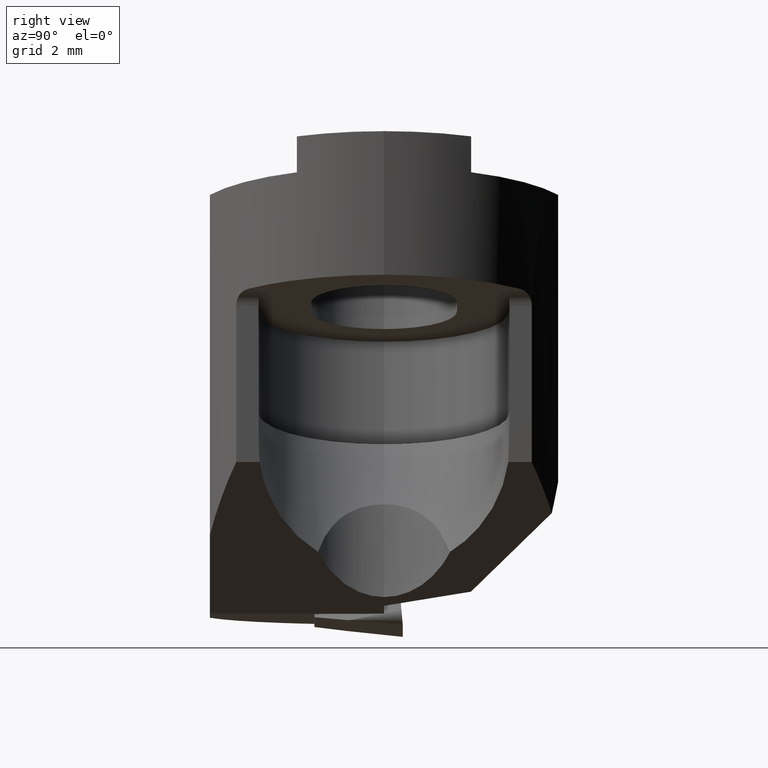
[diagram: clean part render]
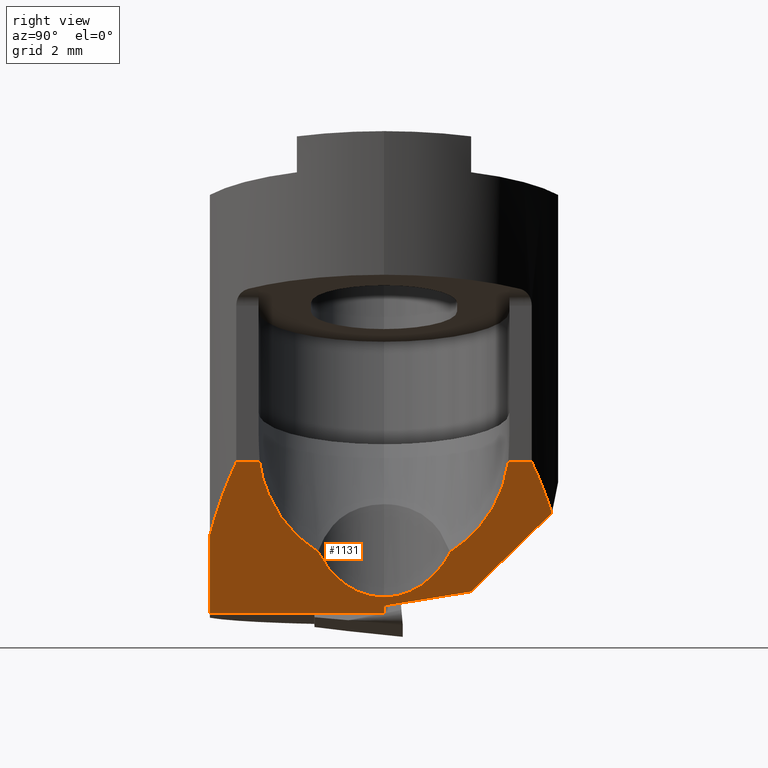
[diagram: same view with one face highlighted and labeled with its STEP entity id]
A machine part, right view. The second image highlights one B-rep face of the part: STEP entity #1131.
In plain terms, the highlighted planar face has unit normal (-0.866, 0, 0.5).
Its self-contained STEP definition (entity closure, byte-faithful):
#905=VERTEX_POINT('NONE',#2488);
#915=EDGE_CURVE('NONE',#997,#1475,#2498,.T.);
#961=EDGE_CURVE('NONE',#1815,#1187,#2549,.F.);
#997=VERTEX_POINT('NONE',#2585);
#1061=EDGE_CURVE('NONE',#2227,#1665,#2653,.T.);
#1087=EDGE_CURVE('NONE',#905,#1157,#2681,.T.);
#1101=EDGE_CURVE('NONE',#1187,#997,#2695,.T.);
#1103=VERTEX_POINT('',#2697);
#1131=ADVANCED_FACE('NONE',(#2727),#2728,.F.);
#1157=VERTEX_POINT('NONE',#2756);
#1165=EDGE_CURVE('NONE',#2227,#1103,#2764,.T.);
#1187=VERTEX_POINT('NONE',#2788);
#1191=VERTEX_POINT('NONE',#2793);
#1243=VERTEX_POINT('NONE',#2851);
#1417=VERTEX_POINT('NONE',#3048);
#1475=VERTEX_POINT('NONE',#3111);
#1485=EDGE_CURVE('NONE',#1191,#1475,#3121,.T.);
#1523=EDGE_CURVE('NONE',#1191,#1739,#3165,.T.);
#1665=VERTEX_POINT('NONE',#3317);
#1727=EDGE_CURVE('NONE',#905,#1665,#3386,.T.);
#1739=VERTEX_POINT('NONE',#3399);
#1815=VERTEX_POINT('NONE',#3483);
#1823=EDGE_CURVE('NONE',#1417,#1815,#3492,.T.);
#1859=EDGE_CURVE('NONE',#1417,#1243,#3535,.T.);
#2019=EDGE_CURVE('NONE',#1103,#1739,#3716,.T.);
#2185=EDGE_CURVE('NONE',#1243,#1157,#3903,.T.);
#2227=VERTEX_POINT('NONE',#3945);
#2488=CARTESIAN_POINT('',(3.5,-4.24264068711929,-9.5));
#2498=ELLIPSE('',#4276,11.0,5.5);
#2549=LINE('',#4346,#4347);
#2585=CARTESIAN_POINT('',(2.65314188419159,4.81776277356496,-10.9668012833822));
#2653=ELLIPSE('',#4513,4.1569219381653,3.6);
#2681=ELLIPSE('',#4551,11.0,5.5);
#2695=LINE('',#4574,#4575);
#2697=CARTESIAN_POINT('',(1.26066144773034,-2.75536429610033E-016,-13.3786481478788));
#2727=FACE_OUTER_BOUND('',#4620,.T.);
#2728=PLANE('',#4621);
#2756=CARTESIAN_POINT('',(2.29128784747792,-5.0,-11.5935508598942));
#2764=ELLIPSE('',#4667,3.2390022141579,2.25);
#2788=CARTESIAN_POINT('',(1.35023679453946,2.49596890300842,-13.2234990960998));
#2793=CARTESIAN_POINT('',(3.5,3.56800282665018,-9.5));
#2851=CARTESIAN_POINT('',(0.991652417371709,-5.0,-13.8445854561548));
#3048=CARTESIAN_POINT('',(0.99165241223841,0.0,-13.8445854650459));
#3111=CARTESIAN_POINT('',(3.5,4.24264068711929,-9.5));
#3121=LINE('',#5182,#5183);
#3165=ELLIPSE('',#5235,4.1569219381653,3.6);
#3317=CARTESIAN_POINT('',(3.5,-3.56800282665017,-9.5));
#3386=LINE('',#5572,#5573);
#3399=CARTESIAN_POINT('',(2.01035164647961,1.89793726526326,-12.0801466337086));
#3483=CARTESIAN_POINT('',(1.11584908969297,0.0,-13.6294705095633));
#3492=LINE('',#5709,#5710);
#3535=LINE('',#5762,#5763);
#3716=ELLIPSE('',#5991,3.2390022141579,2.25);
#3903=LINE('',#7046,#7047);
#3945=CARTESIAN_POINT('',(2.01035164647961,-1.89793726526327,-12.0801466337086));
#4276=AXIS2_PLACEMENT_3D('',#7444,#7445,#7446);
#4346=CARTESIAN_POINT('',(0.454367967555366,-7.04403975397909,-14.7751894213533));
#4347=VECTOR('',#7514,1.0);
#4513=AXIS2_PLACEMENT_3D('',#7617,#7618,#7619);
#4551=AXIS2_PLACEMENT_3D('',#7646,#7647,#7648);
#4574=CARTESIAN_POINT('',(-0.593144552031376,-0.967162014552761,-16.5895343268421));
#4575=VECTOR('',#7658,1.0);
#4620=EDGE_LOOP('',(#7689,#7690,#7691,#7692,#7693,#7694,#7695,#7696,#7697,#7698,#7699,#7700,#7701));
#4621=AXIS2_PLACEMENT_3D('',#7702,#7703,#7704);
#4667=AXIS2_PLACEMENT_3D('',#7733,#7734,#7735);
#5182=CARTESIAN_POINT('',(3.5,-15.0,-9.5));
#5183=VECTOR('',#8163,1.0);
#5235=AXIS2_PLACEMENT_3D('',#8221,#8222,#8223);
#5572=CARTESIAN_POINT('',(3.5,-15.0,-9.5));
#5573=VECTOR('',#8468,1.0);
#5709=CARTESIAN_POINT('',(1.37879717935741,0.0,-13.1740310585114));
#5710=VECTOR('',#8596,1.0);
#5762=CARTESIAN_POINT('',(0.991652420965107,-8.50008713600659,-13.8445854499308));
#5763=VECTOR('',#8663,1.0);
#5991=AXIS2_PLACEMENT_3D('',#8903,#8904,#8905);
#7046=CARTESIAN_POINT('',(-5.37540648533549,-5.0,-24.8726549704273));
#7047=VECTOR('',#9159,1.0);
#7444=CARTESIAN_POINT('',(-1.90581712629742E-015,0.0,-15.562177826491));
#7445=DIRECTION('',(0.866025403784438,0.0,-0.500000000000001));
#7446=DIRECTION('',(0.500000000000002,0.0,0.866025403784438));
#7514=DIRECTION('',(-0.0922928507230277,-0.982816421729749,-0.159855906627653));
#7617=CARTESIAN_POINT('',(3.7764994448556,3.50429149421611E-015,-9.02108891324552));
#7618=DIRECTION('',(-0.866025403784438,1.31785027772721E-032,0.500000000000001));
#7619=DIRECTION('',(0.500000000000001,-2.40933816107889E-016,0.866025403784438));
#7646=CARTESIAN_POINT('',(-1.90581712629742E-015,0.0,-15.562177826491));
#7647=DIRECTION('',(0.866025403784438,0.0,-0.500000000000001));
#7648=DIRECTION('',(0.500000000000002,0.0,0.866025403784438));
#7658=DIRECTION('',(0.373311855226478,0.665246597127308,0.646595100320055));
#7689=ORIENTED_EDGE('',*,*,#961,.T.);
#7690=ORIENTED_EDGE('',*,*,#1101,.T.);
#7691=ORIENTED_EDGE('',*,*,#915,.T.);
#7692=ORIENTED_EDGE('',*,*,#1485,.F.);
#7693=ORIENTED_EDGE('',*,*,#1523,.T.);
#7694=ORIENTED_EDGE('',*,*,#2019,.F.);
#7695=ORIENTED_EDGE('',*,*,#1165,.F.);
#7696=ORIENTED_EDGE('',*,*,#1061,.T.);
#7697=ORIENTED_EDGE('',*,*,#1727,.F.);
#7698=ORIENTED_EDGE('',*,*,#1087,.T.);
#7699=ORIENTED_EDGE('',*,*,#2185,.F.);
#7700=ORIENTED_EDGE('',*,*,#1859,.F.);
#7701=ORIENTED_EDGE('',*,*,#1823,.T.);
#7702=CARTESIAN_POINT('',(-1.69615242270665,-15.0,-18.5));
#7703=DIRECTION('',(-0.866025403784438,0.0,0.500000000000002));
#7704=DIRECTION('',(0.0,1.0,0.0));
#7733=CARTESIAN_POINT('',(2.8801625548093,0.0,-10.573589947504));
#7734=DIRECTION('',(0.866025403784438,0.0,-0.500000000000002));
#7735=DIRECTION('',(0.500000000000002,0.0,0.866025403784438));
#8163=DIRECTION('',(0.0,1.0,0.0));
#8221=CARTESIAN_POINT('',(3.7764994448556,3.50429149421611E-015,-9.02108891324552));
#8222=DIRECTION('',(-0.866025403784438,1.31785027772721E-032,0.500000000000001));
#8223=DIRECTION('',(0.500000000000001,-2.40933816107889E-016,0.866025403784438));
#8468=DIRECTION('',(0.0,1.0,0.0));
#8596=DIRECTION('',(0.500000000000002,0.0,0.866025403784438));
#8663=DIRECTION('',(1.02665969332542E-009,-1.0,1.7782267509227E-009));
#8903=CARTESIAN_POINT('',(2.8801625548093,0.0,-10.573589947504));
#8904=DIRECTION('',(0.866025403784438,0.0,-0.500000000000002));
#8905=DIRECTION('',(0.500000000000002,0.0,0.866025403784438));
#9159=DIRECTION('',(0.500000000000002,0.0,0.866025403784438));